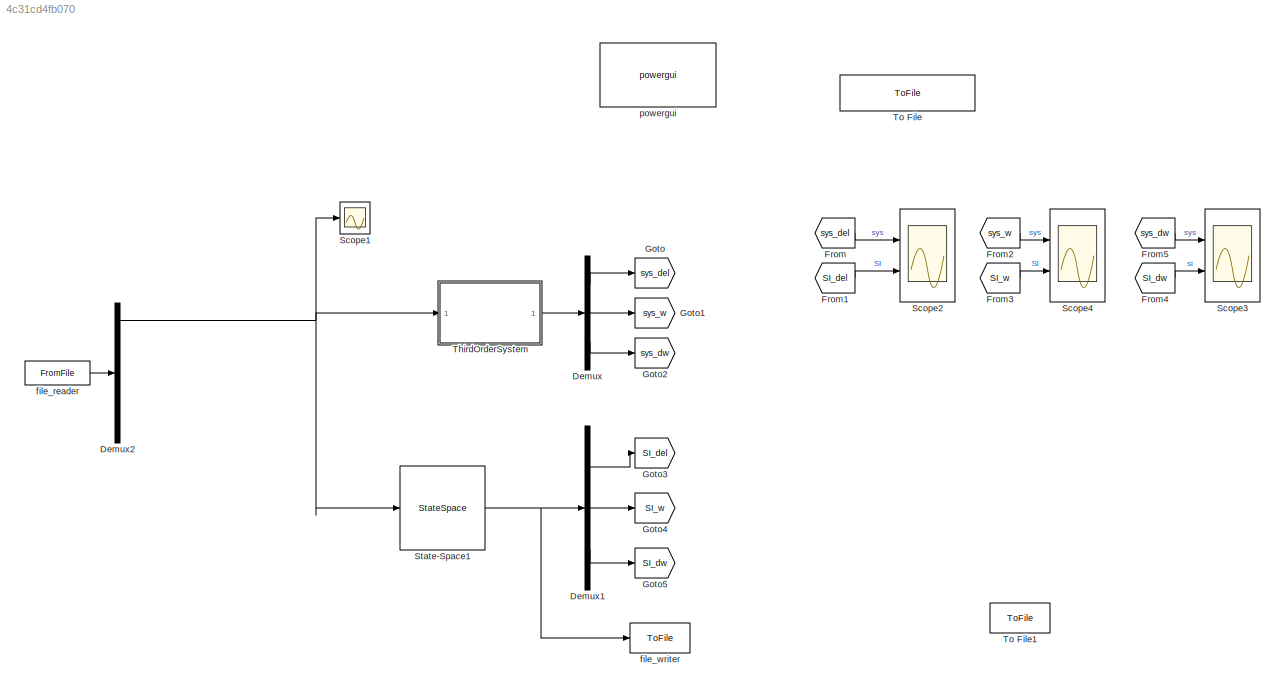
MODEL slx_4c31cd4fb070
KIND model
CONFIG AbsTol = 1e-3
CONFIG EnableMultiTasking = off
CONFIG FixedStep = 50e-6
CONFIG MaxStep = auto
CONFIG MinStep = auto
CONFIG RelTol = 1e-3
CONFIG SampleTimeConstraint = Unconstrained
CONFIG SolverName = ode8
CONFIG StartTime = 0.0
CONFIG StopTime = 40
BLOCK [Demux] Demux
  Outputs = 3
  Ports = [1, 3]
BLOCK [Demux] Demux1
  Outputs = 3
  Ports = [1, 3]
BLOCK [Demux] Demux2
  Outputs = 7
  Ports = [1, 7]
BLOCK [From] From
  GotoTag = sys_del
BLOCK [From] From1
  GotoTag = SI_del
BLOCK [From] From2
  GotoTag = sys_w
BLOCK [From] From3
  GotoTag = SI_w
BLOCK [From] From4
  GotoTag = SI_dw
BLOCK [From] From5
  GotoTag = sys_dw
BLOCK [Goto] Goto
  GotoTag = sys_del
BLOCK [Goto] Goto1
  GotoTag = sys_w
BLOCK [Goto] Goto2
  GotoTag = sys_dw
BLOCK [Goto] Goto3
  GotoTag = SI_del
BLOCK [Goto] Goto4
  GotoTag = SI_w
BLOCK [Goto] Goto5
  GotoTag = SI_dw
BLOCK [Scope] Scope1
  Floating = off
  NumInputPorts = 1
  Ports = [1]
  ScopeSpecificationString = Simulink.scopes.TimeScopeBlockCfg('CurrentConfiguration', extmgr.ConfigurationSet(extmgr.Configuration('Core','General UI',true),extmgr.Configuration('Core','Source UI',true),extmgr.Configuration('Sources','WiredSimulink',true,'DataLoggingVariableName','ScopeData2'),extmgr.Configuration('Visuals','Time Domain',true,'SerializedDisplays',{struct('MinYLimReal','-0.025','MaxYLimReal','0.225','YLabelRe...<+1380ch>
BLOCK [Scope] Scope2
  Floating = off
  NumInputPorts = 2
  Ports = [2]
  ScopeSpecificationString = Simulink.scopes.TimeScopeBlockCfg('CurrentConfiguration', extmgr.ConfigurationSet(extmgr.Configuration('Core','General UI',true),extmgr.Configuration('Core','Source UI',true),extmgr.Configuration('Sources','WiredSimulink',true,'DataLoggingVariableName','ScopeData3'),extmgr.Configuration('Visuals','Time Domain',true,'SerializedDisplays',{struct('MinYLimReal','-0.0574','MaxYLimReal','0.00638','YLabe...<+1433ch>
BLOCK [Scope] Scope3
  Floating = off
  NumInputPorts = 2
  Ports = [2]
  ScopeSpecificationString = Simulink.scopes.TimeScopeBlockCfg('CurrentConfiguration', extmgr.ConfigurationSet(extmgr.Configuration('Core','General UI',true),extmgr.Configuration('Core','Source UI',true),extmgr.Configuration('Sources','WiredSimulink',true,'DataLoggingVariableName','ScopeData4'),extmgr.Configuration('Visuals','Time Domain',true,'SerializedDisplays',{struct('MinYLimReal','-0.03413','MaxYLimReal','0.0295','YLabe...<+1407ch>
BLOCK [Scope] Scope4
  Floating = off
  NumInputPorts = 2
  Ports = [2]
  ScopeSpecificationString = Simulink.scopes.TimeScopeBlockCfg('CurrentConfiguration', extmgr.ConfigurationSet(extmgr.Configuration('Core','General UI',true),extmgr.Configuration('Core','Source UI',true),extmgr.Configuration('Sources','WiredSimulink',true,'DataLoggingVariableName','ScopeData1'),extmgr.Configuration('Visuals','Time Domain',true,'SerializedDisplays',{struct('MinYLimReal','-0.01182','MaxYLimReal','0.00131','YLab...<+1442ch>
BLOCK [StateSpace] State-Space1
  A = [0, 1.0, 0;\n0, 0, 1;\n-2.0700425260532183, -26.739610499177303, -5.351435222623707]
  B = [-0.009099383338581388;\n-0.000870938932030332;\n-1.24145686633005]
  C = eye(3)
  D = [0;0;0]
  InitialCondition = 0
  Ports = [1, 1]
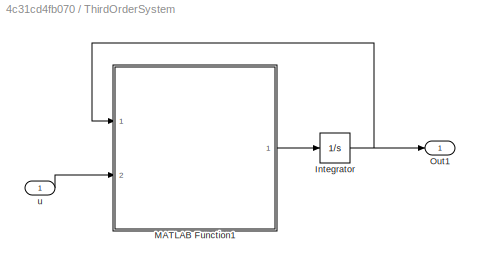
BLOCK [SubSystem] ThirdOrderSystem
  Ports = [1, 1]
  RequestExecContextInheritance = off
BLOCK [Integrator] ThirdOrderSystem/Integrator
  InitialCondition = [0;0;0]
  Ports = [1, 1]
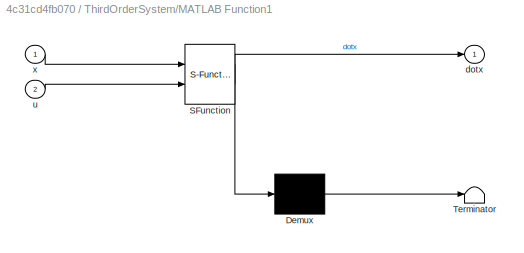
BLOCK [SubSystem] ThirdOrderSystem/MATLAB Function1
  ErrorFcn = Stateflow.Translate.translate
  PermitHierarchicalResolution = ExplicitOnly
  Ports = [2, 1]
  RequestExecContextInheritance = off
  SFBlockType = MATLAB Function
  TreatAsAtomicUnit = on
BLOCK [Demux] ThirdOrderSystem/MATLAB Function1/ Demux 
  Outputs = 1
  Ports = [1, 1]
BLOCK [S-Function] ThirdOrderSystem/MATLAB Function1/ SFunction 
  EnableBusSupport = on
  FunctionName = sf_sfun
  PortCounts = [2 2]
  Ports = [2, 2]
  SFcnIsStateOwnerBlock = off
  SFunctionDeploymentMode = off
  Tag = Stateflow S-Function 1
BLOCK [Terminator] ThirdOrderSystem/MATLAB Function1/ Terminator 
BLOCK [Outport] ThirdOrderSystem/MATLAB Function1/dotx
BLOCK [Inport] ThirdOrderSystem/MATLAB Function1/u
  Port = 2
BLOCK [Inport] ThirdOrderSystem/MATLAB Function1/x
BLOCK [Outport] ThirdOrderSystem/Out1
BLOCK [Inport] ThirdOrderSystem/u
BLOCK [ToFile] To File
  Commented = on
  Filename = matFiles/testSq1Hz_PLL.mat
  MatrixName = datavar
  Ports = [1]
  SampleTime = 0.02
BLOCK [ToFile] To File1
  Commented = on
  Filename = data_step_val.mat
  MatrixName = datavar
  Ports = [1]
  SampleTime = 0.02
BLOCK [FromFile] file_reader
  FileName = ../data_gen/data_val2.mat
  OutDataTypeStr = double
  SampleTime = 0
BLOCK [ToFile] file_writer
  Filename = sysID_val2.mat
  MatrixName = datavar
  Ports = [1]
  SampleTime = 0.02
BLOCK [Reference] powergui  REF=spspowerguiLib/powergui
  Ports = []
  Priority = 1
  SourceBlock = spspowerguiLib/powergui
  SourceProductBaseCode = PS
  SourceType = PSB option menu block
LINE Demux1:1 -> Goto3:1
LINE Demux1:2 -> Goto4:1
LINE Demux1:3 -> Goto5:1
NET Demux2:1 -> Scope1:1, State-Space1:1, ThirdOrderSystem:1
LINE Demux:1 -> Goto:1
LINE Demux:2 -> Goto1:1
LINE Demux:3 -> Goto2:1
LINE From1:1 -> Scope2:2
LINE From2:1 -> Scope4:1
LINE From3:1 -> Scope4:2
LINE From4:1 -> Scope3:2
LINE From5:1 -> Scope3:1
LINE From:1 -> Scope2:1
NET State-Space1:1 -> Demux1:1, file_writer:1
NET ThirdOrderSystem/Integrator:1 -> ThirdOrderSystem/MATLAB Function1:1, ThirdOrderSystem/Out1:1
LINE ThirdOrderSystem/MATLAB Function1:1 -> ThirdOrderSystem/Integrator:1
LINE ThirdOrderSystem/u:1 -> ThirdOrderSystem/MATLAB Function1:2
LINE ThirdOrderSystem:1 -> Demux:1
LINE file_reader:1 -> Demux2:1
note: NET lines group one-source signal fan-out (src -> all destinations, sorted); 1:1 wires keep LINE
CHART ThirdOrderSystem/MATLAB Function1 states=1 transitions=1
  STATE_LABEL 'eML_blk_kernel()'
  STATE_LABEL 'SCRIPT:\nfunction dotx = ThirdOrderSystem(x, u)\n% M = 4; D = 1.5; Rp = 0.05; Tg = 0.2; Ki =1.8;\n% A = [ 0, 1; -(D/(M*Tg) + 1/(Rp*M*Tg)), -(D/M+1/Tg)];\n% B = [0; (1/(M*Tg))];\n% dotx = A*x + B*u;\n    ki = 2;\n    Tg = 0.2;\n    Rp = 0.05;\n    \n    de = x(1);\n    w = x(2);\n    wdot= x(3);\n\n    M = 4.0;\n    D = 1.5;\n\n    dotx =  [\n        w;\n        wdot;\n        -(ki/(M*Tg))*de-(D/(M*Tg) + 1/(Rp*M*Tg))*...<+42ch>'
CHART  states=0 transitions=0
